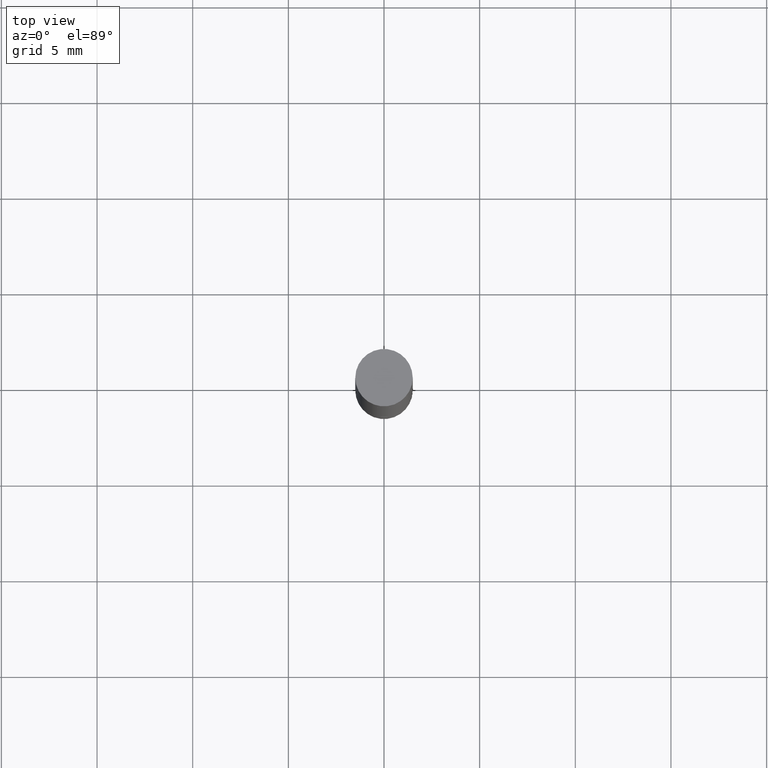
[diagram: clean part render]
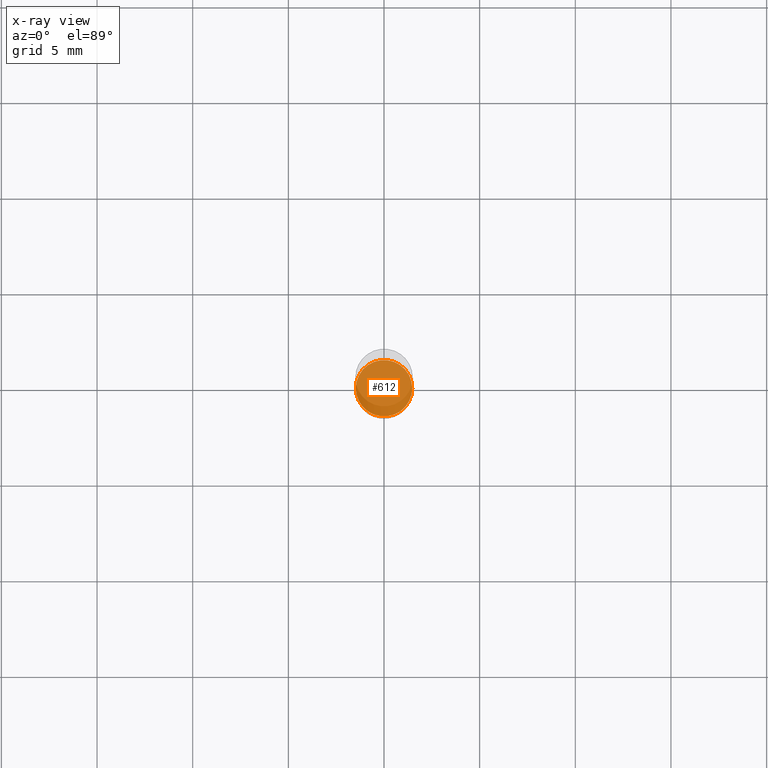
[diagram: x-ray — body ghosted, one internal face saturated and labeled with its STEP entity id]
A machine part, top view, then the same camera in x-ray: the body is ghosted and one INTERNAL B-rep face — a face not visible from any outside direction — is saturated and labeled: STEP entity #612.
In plain terms, the highlighted planar face has unit normal (-0, 0, 1).
Its self-contained STEP definition (entity closure, byte-faithful):
#7 = CARTESIAN_POINT ( 'NONE',  ( -0.05805000000000001131, -3.981148826351518144E-15, -1.259899999999999798 ) ) ;
#145 = CIRCLE ( 'NONE', #433, 0.05805000000000001131 ) ;
#148 = DIRECTION ( 'NONE',  ( 1.000000000000000000, -6.982962677686265922E-15, 4.876176775795935793E-29 ) ) ;
#153 = CIRCLE ( 'NONE', #206, 0.05805000000000001131 ) ;
#168 = CARTESIAN_POINT ( 'NONE',  ( 3.081046148912652946E-29, -4.398917338808479031E-15, -1.259899999999999798 ) ) ;
#172 = ORIENTED_EDGE ( 'NONE', *, *, #470, .F. ) ;
#194 = DIRECTION ( 'NONE',  ( -2.445468806185136597E-29, 3.491481338843145583E-15, 1.000000000000000000 ) ) ;
#204 = EDGE_CURVE ( 'NONE', #345, #498, #145, .T. ) ;
#206 = AXIS2_PLACEMENT_3D ( 'NONE', #503, #653, #336 ) ;
#315 = AXIS2_PLACEMENT_3D ( 'NONE', #664, #660, #148 ) ;
#336 = DIRECTION ( 'NONE',  ( 1.000000000000000000, -6.982962677686270655E-15, 0.000000000000000000 ) ) ;
#345 = VERTEX_POINT ( 'NONE', #680 ) ;
#433 = AXIS2_PLACEMENT_3D ( 'NONE', #168, #194, #656 ) ;
#437 = EDGE_LOOP ( 'NONE', ( #600, #172 ) ) ;
#458 = PLANE ( 'NONE',  #315 ) ;
#470 = EDGE_CURVE ( 'NONE', #498, #345, #153, .T. ) ;
#498 = VERTEX_POINT ( 'NONE', #7 ) ;
#503 = CARTESIAN_POINT ( 'NONE',  ( 3.081046148912652946E-29, -4.398917338808479031E-15, -1.259899999999999798 ) ) ;
#600 = ORIENTED_EDGE ( 'NONE', *, *, #204, .F. ) ;
#612 = ADVANCED_FACE ( 'NONE', ( #617 ), #458, .F. ) ;
#617 = FACE_OUTER_BOUND ( 'NONE', #437, .T. ) ;
#653 = DIRECTION ( 'NONE',  ( -2.445468806185136597E-29, 3.491481338843145583E-15, 1.000000000000000000 ) ) ;
#656 = DIRECTION ( 'NONE',  ( 1.000000000000000000, -6.982962677686270655E-15, 0.000000000000000000 ) ) ;
#660 = DIRECTION ( 'NONE',  ( -2.438088387897960049E-29, 3.491481338843145188E-15, 1.000000000000000000 ) ) ;
#664 = CARTESIAN_POINT ( 'NONE',  ( 3.081046148912652946E-29, -4.398917338808479031E-15, -1.259899999999999798 ) ) ;
#680 = CARTESIAN_POINT ( 'NONE',  ( 0.05805000000000001131, -4.804278322248167148E-15, -1.259899999999999798 ) ) ;